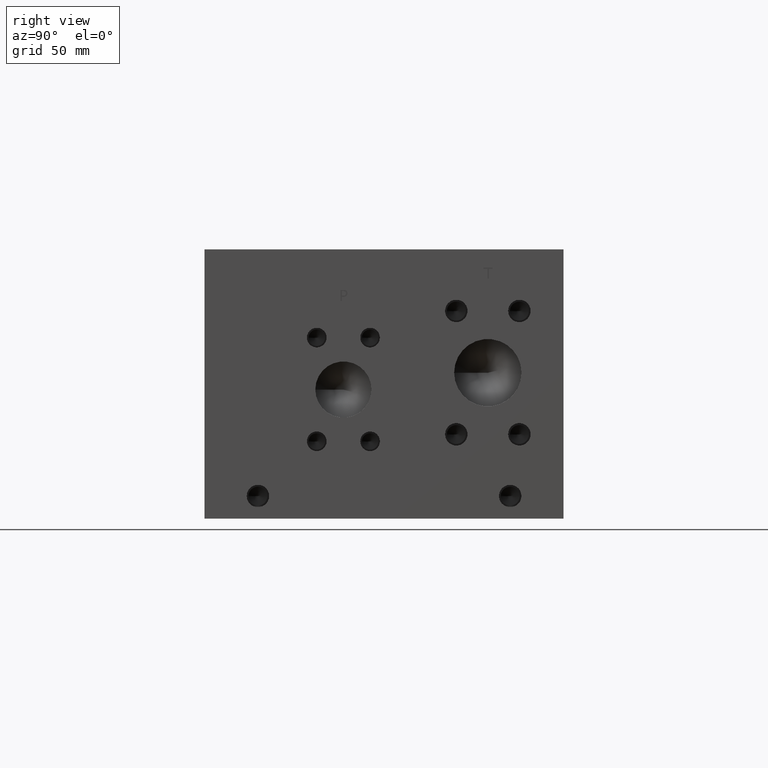
[diagram: clean part render]
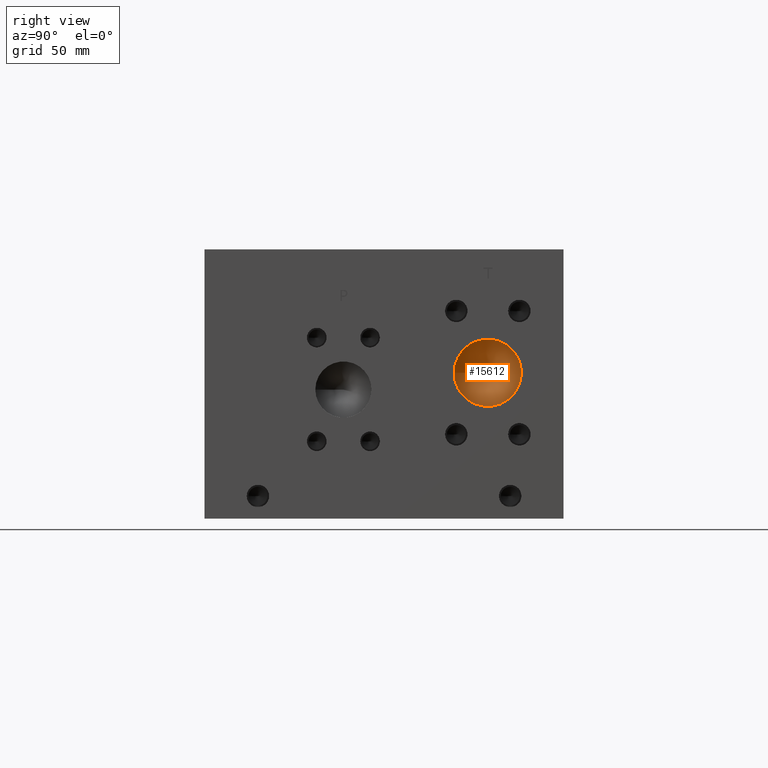
[diagram: same view with one face highlighted and labeled with its STEP entity id]
A machine part, right view. The second image highlights one B-rep face of the part: STEP entity #15612.
In plain terms, the highlighted conical surface has half-angle 60 deg.
Its self-contained STEP definition (entity closure, byte-faithful):
#62=CONICAL_SURFACE('',#16592,9.525,1.0471975511966);
#556=CIRCLE('',#16593,19.05);
#557=CIRCLE('',#16594,19.05);
#2121=FACE_OUTER_BOUND('',#3070,.T.);
#3070=EDGE_LOOP('',(#13336,#13337,#13338,#13339));
#4481=LINE('',#26684,#5815);
#5815=VECTOR('',#19830,9.525);
#7225=VERTEX_POINT('',#26680);
#7226=VERTEX_POINT('',#26681);
#7227=VERTEX_POINT('',#26683);
#9339=EDGE_CURVE('',#7225,#7226,#556,.T.);
#9340=EDGE_CURVE('',#7226,#7227,#4481,.T.);
#9341=EDGE_CURVE('',#7226,#7225,#557,.T.);
#13336=ORIENTED_EDGE('',*,*,#9339,.T.);
#13337=ORIENTED_EDGE('',*,*,#9340,.T.);
#13338=ORIENTED_EDGE('',*,*,#9340,.F.);
#13339=ORIENTED_EDGE('',*,*,#9341,.T.);
#15612=ADVANCED_FACE('',(#2121),#62,.F.);
#16592=AXIS2_PLACEMENT_3D('',#26679,#19826,#19827);
#16593=AXIS2_PLACEMENT_3D('',#26682,#19828,#19829);
#16594=AXIS2_PLACEMENT_3D('',#26685,#19831,#19832);
#19826=DIRECTION('center_axis',(1.,0.,0.));
#19827=DIRECTION('ref_axis',(0.,1.,0.));
#19828=DIRECTION('center_axis',(1.,0.,0.));
#19829=DIRECTION('ref_axis',(0.,1.,0.));
#19830=DIRECTION('',(-0.5,0.866025403784439,1.06057523872491E-16));
#19831=DIRECTION('center_axis',(1.,0.,0.));
#19832=DIRECTION('ref_axis',(0.,1.,0.));
#26679=CARTESIAN_POINT('Origin',(310.527218685969,160.3502,82.55));
#26680=CARTESIAN_POINT('',(316.02648,179.4002,82.55));
#26681=CARTESIAN_POINT('',(316.02648,141.3002,82.55));
#26682=CARTESIAN_POINT('Origin',(316.02648,160.3502,82.55));
#26683=CARTESIAN_POINT('',(305.027957371938,160.3502,82.55));
#26684=CARTESIAN_POINT('',(310.527218685969,150.8252,82.55));
#26685=CARTESIAN_POINT('Origin',(316.02648,160.3502,82.55));